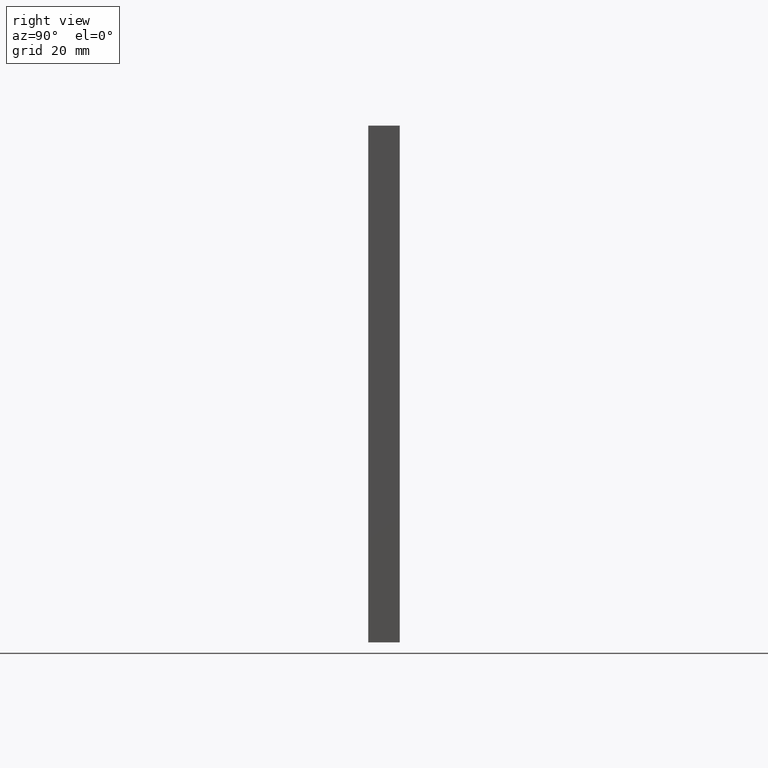
[diagram: clean part render]
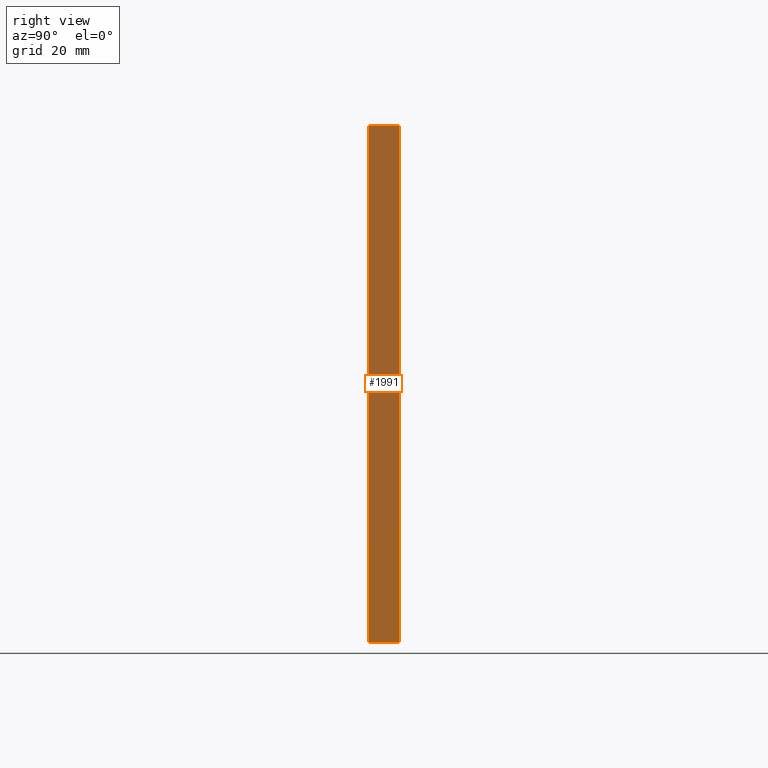
[diagram: same view with one face highlighted and labeled with its STEP entity id]
A machine part, right view. The second image highlights one B-rep face of the part: STEP entity #1991.
In plain terms, the highlighted planar face has unit normal (-1, 0, 0).
Its self-contained STEP definition (entity closure, byte-faithful):
#12 = EDGE_CURVE ( 'NONE', #2062, #1204, #255, .T. ) ;
#23 = CARTESIAN_POINT ( 'NONE',  ( 101.9999999999999858, 6.200000000000000178, -102.0000000000000000 ) ) ;
#24 = CARTESIAN_POINT ( 'NONE',  ( 101.9999999999999858, 0.000000000000000000, 0.000000000000000000 ) ) ;
#47 = CARTESIAN_POINT ( 'NONE',  ( 101.9999999999999858, 6.200000000000000178, 0.000000000000000000 ) ) ;
#109 = DIRECTION ( 'NONE',  ( 0.000000000000000000, 0.000000000000000000, -1.000000000000000000 ) ) ;
#149 = CARTESIAN_POINT ( 'NONE',  ( 101.9999999999999858, 6.200000000000000178, 0.000000000000000000 ) ) ;
#184 = CARTESIAN_POINT ( 'NONE',  ( 101.9999999999999858, 6.200000000000000178, -102.0000000000000000 ) ) ;
#238 = VECTOR ( 'NONE', #109, 1000.000000000000000 ) ;
#255 = LINE ( 'NONE', #1057, #238 ) ;
#318 = VECTOR ( 'NONE', #1773, 1000.000000000000000 ) ;
#380 = ORIENTED_EDGE ( 'NONE', *, *, #1770, .T. ) ;
#413 = EDGE_CURVE ( 'NONE', #1204, #1592, #1572, .T. ) ;
#469 = DIRECTION ( 'NONE',  ( -0.000000000000000000, -1.000000000000000000, -0.000000000000000000 ) ) ;
#514 = LINE ( 'NONE', #47, #318 ) ;
#628 = CARTESIAN_POINT ( 'NONE',  ( 101.9999999999999858, 0.000000000000000000, -102.0000000000000000 ) ) ;
#677 = FACE_OUTER_BOUND ( 'NONE', #1599, .T. ) ;
#787 = AXIS2_PLACEMENT_3D ( 'NONE', #149, #1209, #1407 ) ;
#808 = ORIENTED_EDGE ( 'NONE', *, *, #12, .F. ) ;
#1057 = CARTESIAN_POINT ( 'NONE',  ( 101.9999999999999858, 6.200000000000000178, 0.000000000000000000 ) ) ;
#1127 = ORIENTED_EDGE ( 'NONE', *, *, #413, .F. ) ;
#1204 = VERTEX_POINT ( 'NONE', #184 ) ;
#1209 = DIRECTION ( 'NONE',  ( -1.000000000000000000, 0.000000000000000000, 0.000000000000000000 ) ) ;
#1211 = CARTESIAN_POINT ( 'NONE',  ( 101.9999999999999858, 0.000000000000000000, 0.000000000000000000 ) ) ;
#1407 = DIRECTION ( 'NONE',  ( 0.000000000000000000, 0.000000000000000000, 1.000000000000000000 ) ) ;
#1469 = ORIENTED_EDGE ( 'NONE', *, *, #1937, .T. ) ;
#1572 = LINE ( 'NONE', #23, #1667 ) ;
#1592 = VERTEX_POINT ( 'NONE', #628 ) ;
#1599 = EDGE_LOOP ( 'NONE', ( #380, #1127, #808, #1469 ) ) ;
#1667 = VECTOR ( 'NONE', #469, 1000.000000000000000 ) ;
#1668 = DIRECTION ( 'NONE',  ( 0.000000000000000000, 0.000000000000000000, -1.000000000000000000 ) ) ;
#1770 = EDGE_CURVE ( 'NONE', #1889, #1592, #2021, .T. ) ;
#1773 = DIRECTION ( 'NONE',  ( -0.000000000000000000, -1.000000000000000000, -0.000000000000000000 ) ) ;
#1795 = PLANE ( 'NONE',  #787 ) ;
#1889 = VERTEX_POINT ( 'NONE', #24 ) ;
#1925 = CARTESIAN_POINT ( 'NONE',  ( 101.9999999999999858, 6.200000000000000178, 0.000000000000000000 ) ) ;
#1937 = EDGE_CURVE ( 'NONE', #2062, #1889, #514, .T. ) ;
#1991 = ADVANCED_FACE ( 'NONE', ( #677 ), #1795, .F. ) ;
#2021 = LINE ( 'NONE', #1211, #2033 ) ;
#2033 = VECTOR ( 'NONE', #1668, 1000.000000000000000 ) ;
#2062 = VERTEX_POINT ( 'NONE', #1925 ) ;